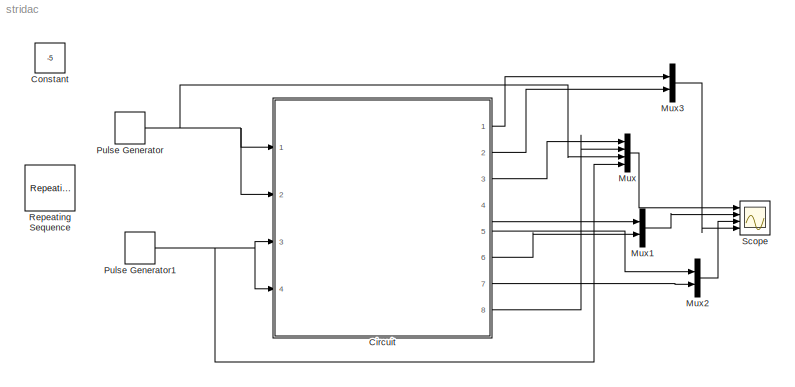
MODEL stridac
KIND model
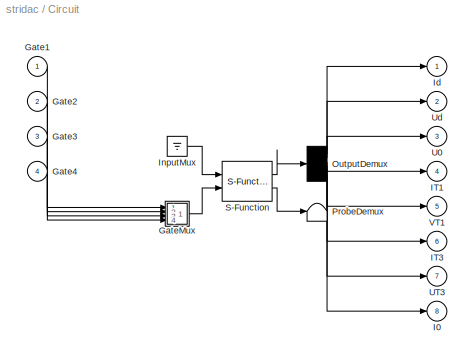
BLOCK [SubSystem] Circuit
  CopyFcn = plecsedit('sl', 203);
  DeleteFcn = plecsedit('sl', 205);
  DestroyFcn = plecsedit('sl', 207);
  ErrorFcn = plerrorfcn
  FunctionWithSeparateData = off
  InitFcn = plecsedit('sl', 214);
  LoadFcn = plecsedit('sl', 200);
  MaskHideContents = off
  MinAlgLoopOccurrences = off
  NameChangeFcn = plecsedit('sl', 210);
  Opaque = off
  OpenFcn = plecsedit('sl', 202);
  Ports = [4, 8]
  PostSaveFcn = plecsedit('sl', 201);
  PreCopyFcn = plecsedit('sl', 216);
  PreSaveFcn = plecsedit('sl', 211);
  PropExecContextOutsideSubsystem = off
  RTWSystemCode = Auto
  RequestExecContextInheritance = off
  SID = 1
  StartFcn = plecsedit('sl', 208);
  StopFcn = plecsedit('sl', 209);
  UndoDeleteFcn = plecsedit('sl', 206);
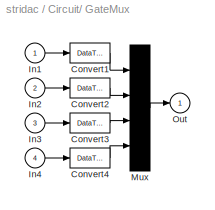
BLOCK [SubSystem] Circuit/ GateMux 
  FunctionWithSeparateData = off
  MaskHideContents = off
  MinAlgLoopOccurrences = off
  Opaque = off
  Ports = [4, 1]
  PropExecContextOutsideSubsystem = off
  RTWSystemCode = Auto
  RequestExecContextInheritance = off
  SID = 1:31
BLOCK [DataTypeConversion] Circuit/ GateMux /Convert1
  SID = 1:35
BLOCK [DataTypeConversion] Circuit/ GateMux /Convert2
  SID = 1:37
BLOCK [DataTypeConversion] Circuit/ GateMux /Convert3
  SID = 1:39
BLOCK [DataTypeConversion] Circuit/ GateMux /Convert4
  SID = 1:41
BLOCK [Inport] Circuit/ GateMux /In1
  IconDisplay = Port number
  SID = 1:34
BLOCK [Inport] Circuit/ GateMux /In2
  IconDisplay = Port number
  Port = 2
  SID = 1:36
BLOCK [Inport] Circuit/ GateMux /In3
  IconDisplay = Port number
  Port = 3
  SID = 1:38
BLOCK [Inport] Circuit/ GateMux /In4
  IconDisplay = Port number
  Port = 4
  SID = 1:40
BLOCK [Mux] Circuit/ GateMux /Mux
  Inputs = [ 1 1 1 1 ]
  Ports = [4, 1]
  SID = 1:33
BLOCK [Outport] Circuit/ GateMux /Out
  IconDisplay = Port number
  SID = 1:32
BLOCK [Ground] Circuit/ InputMux 
  SID = 1:2
BLOCK [Demux] Circuit/ OutputDemux 
  Outputs = [ 1 1 1 1 1 1 1 1 ]
  Ports = [1, 8]
  SID = 1:43
BLOCK [Terminator] Circuit/ ProbeDemux 
  SID = 1:4
BLOCK [S-Function] Circuit/ S-Function 
  EnableBusSupport = off
  FunctionName = plecsedit
  Ports = [2, 2]
  SID = 1:5
BLOCK [Inport] Circuit/Gate1
  IconDisplay = Port number
  PortDimensions = 1
  SID = 1:6
BLOCK [Inport] Circuit/Gate2
  IconDisplay = Port number
  Port = 2
  PortDimensions = 1
  SID = 1:12
BLOCK [Inport] Circuit/Gate3
  IconDisplay = Port number
  Port = 3
  PortDimensions = 1
  SID = 1:20
BLOCK [Inport] Circuit/Gate4
  IconDisplay = Port number
  Port = 4
  PortDimensions = 1
  SID = 1:30
BLOCK [Outport] Circuit/I0
  IconDisplay = Port number
  Port = 8
  PortDimensions = 1
  SID = 1:50
BLOCK [Outport] Circuit/IT1
  IconDisplay = Port number
  Port = 4
  PortDimensions = 1
  SID = 1:46
BLOCK [Outport] Circuit/IT3
  IconDisplay = Port number
  Port = 6
  PortDimensions = 1
  SID = 1:48
BLOCK [Outport] Circuit/Id
  IconDisplay = Port number
  PortDimensions = 1
  SID = 1:42
BLOCK [Outport] Circuit/U0
  IconDisplay = Port number
  Port = 3
  PortDimensions = 1
  SID = 1:45
BLOCK [Outport] Circuit/UT3
  IconDisplay = Port number
  Port = 7
  PortDimensions = 1
  SID = 1:49
BLOCK [Outport] Circuit/Ud
  IconDisplay = Port number
  Port = 2
  PortDimensions = 1
  SID = 1:44
BLOCK [Outport] Circuit/VT1
  IconDisplay = Port number
  Port = 5
  PortDimensions = 1
  SID = 1:47
BLOCK [Constant] Constant
  SID = 16
  Value = -5
BLOCK [Mux] Mux
  DisplayOption = bar
  Ports = [4, 1]
  SID = 6
BLOCK [Mux] Mux1
  DisplayOption = bar
  Inputs = 2
  Ports = [2, 1]
  SID = 25
BLOCK [Mux] Mux2
  DisplayOption = bar
  Inputs = 2
  Ports = [2, 1]
  SID = 26
BLOCK [Mux] Mux3
  DisplayOption = bar
  Inputs = 2
  Ports = [2, 1]
  SID = 21
BLOCK [DiscretePulseGenerator] Pulse Generator
  Amplitude = 10
  Period = 1/50
  PhaseDelay = ((1/50)/4)*1.5
  Ports = [0, 1]
  PulseType = Time based
  PulseWidth = 5
  SID = 22
BLOCK [DiscretePulseGenerator] Pulse Generator1
  Amplitude = 10
  Period = 1/50
  PhaseDelay = (((1/50)/4)*1.5)*2.3
  Ports = [0, 1]
  PulseType = Time based
  PulseWidth = 5
  SID = 23
BLOCK [Reference] Repeating Sequence  REF=simulink/Sources/Repeating\nSequence
  Ports = [0, 1]
  SID = 17
  SourceBlock = simulink/Sources/Repeating\nSequence
  SourceType = Repeating table
  rep_seq_t = [0 0.5 1]/(50*1)
  rep_seq_y = [-10 10 -10]
BLOCK [Scope] Scope
  DataFormat = StructureWithTime
  Floating = off
  LimitDataPoints = off
  NumInputPorts = 4
  Ports = [4]
  SID = 4
  SampleTime = 0
  ShowLegends = off
  YMax = 10~0.012~8~8
  YMin = -1~0~-8~-8
  ZoomMode = xonly
LINE Circuit/ GateMux /Convert1:1 -> Circuit/ GateMux /Mux:1
LINE Circuit/ GateMux /Convert2:1 -> Circuit/ GateMux /Mux:2
LINE Circuit/ GateMux /Convert3:1 -> Circuit/ GateMux /Mux:3
LINE Circuit/ GateMux /Convert4:1 -> Circuit/ GateMux /Mux:4
LINE Circuit/ GateMux /In1:1 -> Circuit/ GateMux /Convert1:1
LINE Circuit/ GateMux /In2:1 -> Circuit/ GateMux /Convert2:1
LINE Circuit/ GateMux /In3:1 -> Circuit/ GateMux /Convert3:1
LINE Circuit/ GateMux /In4:1 -> Circuit/ GateMux /Convert4:1
LINE Circuit/ GateMux /Mux:1 -> Circuit/ GateMux /Out:1
LINE Circuit/ GateMux :1 -> Circuit/ S-Function :2
LINE Circuit/ InputMux :1 -> Circuit/ S-Function :1
LINE Circuit/ OutputDemux :1 -> Circuit/Id:1
LINE Circuit/ OutputDemux :2 -> Circuit/Ud:1
LINE Circuit/ OutputDemux :3 -> Circuit/U0:1
LINE Circuit/ OutputDemux :4 -> Circuit/IT1:1
LINE Circuit/ OutputDemux :5 -> Circuit/VT1:1
LINE Circuit/ OutputDemux :6 -> Circuit/IT3:1
LINE Circuit/ OutputDemux :7 -> Circuit/UT3:1
LINE Circuit/ OutputDemux :8 -> Circuit/I0:1
LINE Circuit/ S-Function :1 -> Circuit/ OutputDemux :1
LINE Circuit/ S-Function :2 -> Circuit/ ProbeDemux :1
LINE Circuit/Gate1:1 -> Circuit/ GateMux :1
LINE Circuit/Gate2:1 -> Circuit/ GateMux :2
LINE Circuit/Gate3:1 -> Circuit/ GateMux :3
LINE Circuit/Gate4:1 -> Circuit/ GateMux :4
LINE Circuit:1 -> Mux3:1
LINE Circuit:2 -> Mux3:2
LINE Circuit:3 -> Mux:1
LINE Circuit:4 -> Mux1:1
LINE Circuit:5 -> Mux2:1
LINE Circuit:6 -> Mux1:2
LINE Circuit:7 -> Mux2:2
LINE Circuit:8 -> Mux:2
LINE Mux1:1 -> Scope:2
LINE Mux2:1 -> Scope:3
LINE Mux3:1 -> Scope:4
LINE Mux:1 -> Scope:1
NET Pulse Generator1:1 -> Circuit:3, Circuit:4, Mux:4
NET Pulse Generator:1 -> Circuit:1, Circuit:2, Mux:3
note: NET lines group one-source signal fan-out (src -> all destinations, sorted); 1:1 wires keep LINE
